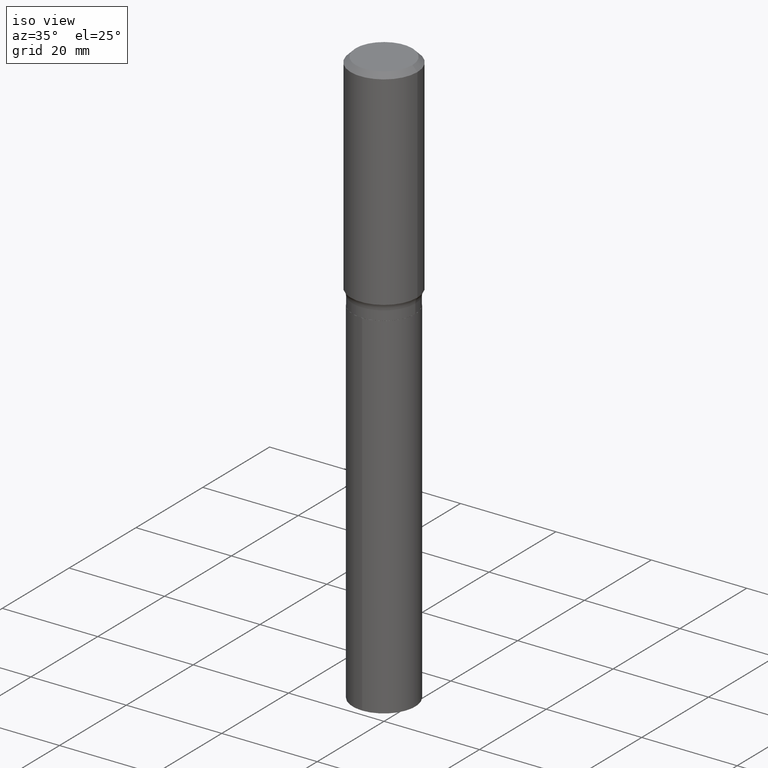
[diagram: clean part render]
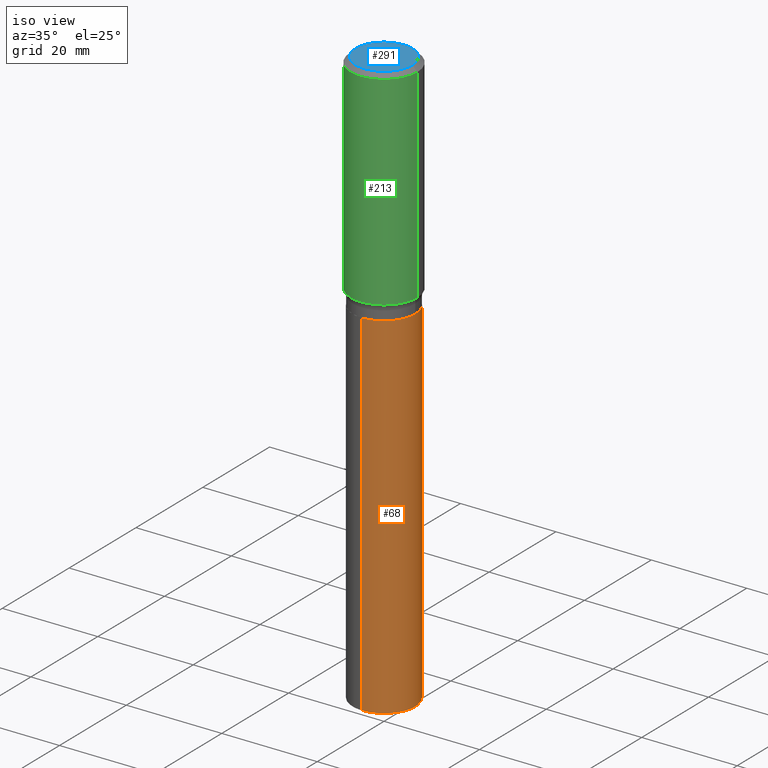
[diagram: same view with three faces highlighted in distinct colors, each labeled with its STEP entity id]
A machine part, iso view with three faces highlighted in distinct colors.
Their STEP definitions:

[orange] entity #68 — the highlighted cylindrical surface (partial cylindrical patch) has radius 6.5481 mm, axis along (-0, 0, 1).
#18 = EDGE_CURVE ( 'NONE', #303, #448, #95, .T. ) ;
#33 = CARTESIAN_POINT ( 'NONE',  ( -1.800207778307473807E-15, -0.2578000000000064129, -1.850499999999998924 ) ) ;
#62 = CARTESIAN_POINT ( 'NONE',  ( 1.831779172789583451E-15, 0.2577999999999935343, -1.850500000000000700 ) ) ;
#68 = ADVANCED_FACE ( 'NONE', ( #323 ), #475, .T. ) ;
#74 = EDGE_LOOP ( 'NONE', ( #409, #113, #177, #222 ) ) ;
#91 = DIRECTION ( 'NONE',  ( -2.445542093304783004E-29, 3.491376387516568254E-15, 1.000000000000000000 ) ) ;
#94 = CARTESIAN_POINT ( 'NONE',  ( 1.168427820367109338E-28, -1.668143909060755790E-14, -4.777842038979696504 ) ) ;
#95 = LINE ( 'NONE', #427, #364 ) ;
#97 = AXIS2_PLACEMENT_3D ( 'NONE', #314, #91, #386 ) ;
#113 = ORIENTED_EDGE ( 'NONE', *, *, #295, .T. ) ;
#116 = VERTEX_POINT ( 'NONE', #321 ) ;
#139 = CARTESIAN_POINT ( 'NONE',  ( 4.525340025845595057E-29, -6.460986217529240299E-15, -1.850499999999999812 ) ) ;
#163 = AXIS2_PLACEMENT_3D ( 'NONE', #94, #474, #358 ) ;
#168 = CIRCLE ( 'NONE', #163, 0.2577999999999999736 ) ;
#170 = CARTESIAN_POINT ( 'NONE',  ( -1.800207778307402810E-15, -0.2578000000000167380, -4.777842038979694728 ) ) ;
#177 = ORIENTED_EDGE ( 'NONE', *, *, #246, .F. ) ;
#202 = DIRECTION ( 'NONE',  ( -2.445542093304782724E-29, 3.491376387516568254E-15, 1.000000000000000000 ) ) ;
#205 = DIRECTION ( 'NONE',  ( -2.445542093304783004E-29, 3.491376387516568254E-15, 1.000000000000000000 ) ) ;
#222 = ORIENTED_EDGE ( 'NONE', *, *, #18, .F. ) ;
#239 = DIRECTION ( 'NONE',  ( -2.445542093304782724E-29, 3.491376387516568254E-15, 1.000000000000000000 ) ) ;
#246 = EDGE_CURVE ( 'NONE', #448, #116, #316, .T. ) ;
#260 = CARTESIAN_POINT ( 'NONE',  ( 1.831779172789655238E-15, 0.2577999999999833203, -4.777842038979697392 ) ) ;
#285 = LINE ( 'NONE', #62, #469 ) ;
#295 = EDGE_CURVE ( 'NONE', #343, #116, #285, .T. ) ;
#303 = VERTEX_POINT ( 'NONE', #170 ) ;
#314 = CARTESIAN_POINT ( 'NONE',  ( 4.525340025845595057E-29, -6.460986217529240299E-15, -1.850499999999999812 ) ) ;
#316 = CIRCLE ( 'NONE', #420, 0.2577999999999999736 ) ;
#321 = CARTESIAN_POINT ( 'NONE',  ( 1.831779172789655238E-15, 0.2577999999999934788, -1.850500000000000700 ) ) ;
#323 = FACE_OUTER_BOUND ( 'NONE', #74, .T. ) ;
#343 = VERTEX_POINT ( 'NONE', #260 ) ;
#358 = DIRECTION ( 'NONE',  ( -6.982962677686265922E-15, -1.000000000000000000, 4.238709066973255853E-15 ) ) ;
#364 = VECTOR ( 'NONE', #239, 39.37007874015748143 ) ;
#386 = DIRECTION ( 'NONE',  ( -6.982962677686265922E-15, -1.000000000000000000, 3.179031800229941890E-15 ) ) ;
#409 = ORIENTED_EDGE ( 'NONE', *, *, #437, .T. ) ;
#420 = AXIS2_PLACEMENT_3D ( 'NONE', #139, #205, #450 ) ;
#427 = CARTESIAN_POINT ( 'NONE',  ( -1.800207778307473807E-15, -0.2578000000000064129, -1.850499999999998924 ) ) ;
#437 = EDGE_CURVE ( 'NONE', #303, #343, #168, .T. ) ;
#448 = VERTEX_POINT ( 'NONE', #33 ) ;
#450 = DIRECTION ( 'NONE',  ( -6.982962677686265922E-15, -1.000000000000000000, 3.179031800229941890E-15 ) ) ;
#469 = VECTOR ( 'NONE', #202, 39.37007874015748143 ) ;
#474 = DIRECTION ( 'NONE',  ( -2.445542093304783004E-29, 3.491376387516568254E-15, 1.000000000000000000 ) ) ;
#475 = CYLINDRICAL_SURFACE ( 'NONE', #97, 0.2577999999999999736 ) ;

[blue] entity #291 — the highlighted planar face has unit normal (0, -0, -1).
#5 = DIRECTION ( 'NONE',  ( 1.000000000000000000, -6.982962677686267499E-15, 4.876157962347795834E-29 ) ) ;
#6 = EDGE_LOOP ( 'NONE', ( #457, #146 ) ) ;
#25 = FACE_OUTER_BOUND ( 'NONE', #6, .T. ) ;
#59 = DIRECTION ( 'NONE',  ( -2.445468806185136597E-29, 3.491481338843145583E-15, 1.000000000000000000 ) ) ;
#60 = AXIS2_PLACEMENT_3D ( 'NONE', #327, #280, #401 ) ;
#64 = CARTESIAN_POINT ( 'NONE',  ( -0.2342600000000000238, 1.707997756148671759E-15, 4.101342130332794026E-18 ) ) ;
#144 = DIRECTION ( 'NONE',  ( 1.000000000000000000, -6.982962677686267499E-15, 4.876157962347795834E-29 ) ) ;
#146 = ORIENTED_EDGE ( 'NONE', *, *, #477, .T. ) ;
#182 = CARTESIAN_POINT ( 'NONE',  ( -1.002970424325033577E-46, 1.431975951230896486E-32, 4.101342130344485961E-18 ) ) ;
#188 = AXIS2_PLACEMENT_3D ( 'NONE', #193, #59, #144 ) ;
#193 = CARTESIAN_POINT ( 'NONE',  ( -1.002970424325033577E-46, 1.431975951230896486E-32, 4.101342130344485961E-18 ) ) ;
#209 = VERTEX_POINT ( 'NONE', #484 ) ;
#257 = DIRECTION ( 'NONE',  ( -2.445468806185136597E-29, 3.491481338843145583E-15, 1.000000000000000000 ) ) ;
#280 = DIRECTION ( 'NONE',  ( 2.438088387897960049E-29, -3.491481338843145188E-15, -1.000000000000000000 ) ) ;
#288 = CIRCLE ( 'NONE', #317, 0.2342600000000000238 ) ;
#290 = VERTEX_POINT ( 'NONE', #64 ) ;
#291 = ADVANCED_FACE ( 'NONE', ( #25 ), #443, .F. ) ;
#307 = CIRCLE ( 'NONE', #188, 0.2342600000000000238 ) ;
#317 = AXIS2_PLACEMENT_3D ( 'NONE', #182, #257, #5 ) ;
#327 = CARTESIAN_POINT ( 'NONE',  ( -5.014852121625167883E-47, 7.159879756154482429E-33, 2.050671065172242981E-18 ) ) ;
#379 = EDGE_CURVE ( 'NONE', #290, #209, #307, .T. ) ;
#401 = DIRECTION ( 'NONE',  ( -1.000000000000000000, 6.982962677686265922E-15, -4.876176775795935793E-29 ) ) ;
#443 = PLANE ( 'NONE',  #60 ) ;
#457 = ORIENTED_EDGE ( 'NONE', *, *, #379, .T. ) ;
#477 = EDGE_CURVE ( 'NONE', #209, #290, #288, .T. ) ;
#484 = CARTESIAN_POINT ( 'NONE',  ( 0.2342600000000000238, -1.821115673845785155E-15, 4.101342130356573868E-18 ) ) ;

[green] entity #213 — the highlighted cylindrical surface (partial cylindrical patch) has radius 7.0002 mm, axis along (-0, 0, 1).
#12 = LINE ( 'NONE', #237, #440 ) ;
#30 = CARTESIAN_POINT ( 'NONE',  ( 0.000000000000000000, 0.000000000000000000, 0.000000000000000000 ) ) ;
#49 = CIRCLE ( 'NONE', #263, 0.2756000000000001782 ) ;
#63 = EDGE_CURVE ( 'NONE', #426, #189, #12, .T. ) ;
#73 = AXIS2_PLACEMENT_3D ( 'NONE', #374, #241, #287 ) ;
#102 = DIRECTION ( 'NONE',  ( -2.445468806185136597E-29, 3.491481338843145583E-15, 1.000000000000000000 ) ) ;
#108 = ORIENTED_EDGE ( 'NONE', *, *, #392, .T. ) ;
#173 = DIRECTION ( 'NONE',  ( 1.000000000000000000, -6.982962677686267499E-15, 4.876176775795935793E-29 ) ) ;
#174 = CIRCLE ( 'NONE', #73, 0.2756000000000000116 ) ;
#178 = ORIENTED_EDGE ( 'NONE', *, *, #63, .T. ) ;
#180 = AXIS2_PLACEMENT_3D ( 'NONE', #30, #102, #173 ) ;
#184 = EDGE_CURVE ( 'NONE', #492, #189, #174, .T. ) ;
#189 = VERTEX_POINT ( 'NONE', #247 ) ;
#207 = CARTESIAN_POINT ( 'NONE',  ( -0.2756000000000001227, 1.958255779754836984E-15, -1.355658510874252567E-29 ) ) ;
#212 = ORIENTED_EDGE ( 'NONE', *, *, #184, .F. ) ;
#213 = ADVANCED_FACE ( 'NONE', ( #370 ), #338, .T. ) ;
#223 = CARTESIAN_POINT ( 'NONE',  ( -0.2756000000000000116, -1.122002406709343696E-15, -0.04134000000000026542 ) ) ;
#228 = DIRECTION ( 'NONE',  ( -2.445468806185136877E-29, 3.491481338843145188E-15, 1.000000000000000000 ) ) ;
#236 = DIRECTION ( 'NONE',  ( -2.445468806185136877E-29, 3.491481338843145188E-15, 1.000000000000000000 ) ) ;
#237 = CARTESIAN_POINT ( 'NONE',  ( 0.2756000000000001227, -1.924504513970336137E-15, 1.343874319409360548E-29 ) ) ;
#241 = DIRECTION ( 'NONE',  ( -2.445468806185136597E-29, 3.491481338843145583E-15, 1.000000000000000000 ) ) ;
#247 = CARTESIAN_POINT ( 'NONE',  ( 0.2756000000000000116, -2.068842352518111732E-15, -0.04134000000000026542 ) ) ;
#263 = AXIS2_PLACEMENT_3D ( 'NONE', #442, #449, #431 ) ;
#287 = DIRECTION ( 'NONE',  ( 1.000000000000000000, -6.982962677686267499E-15, 0.000000000000000000 ) ) ;
#322 = LINE ( 'NONE', #207, #481 ) ;
#331 = ORIENTED_EDGE ( 'NONE', *, *, #384, .F. ) ;
#338 = CYLINDRICAL_SURFACE ( 'NONE', #180, 0.2756000000000001227 ) ;
#339 = VERTEX_POINT ( 'NONE', #380 ) ;
#370 = FACE_OUTER_BOUND ( 'NONE', #385, .T. ) ;
#372 = CARTESIAN_POINT ( 'NONE',  ( 0.2756000000000002337, -7.940683048350921508E-15, -1.723102016170008355 ) ) ;
#374 = CARTESIAN_POINT ( 'NONE',  ( 1.010956804476942048E-30, -1.443378385477765563E-16, -0.04134000000000026542 ) ) ;
#380 = CARTESIAN_POINT ( 'NONE',  ( -0.2756000000000002337, -4.057922754625746809E-15, -1.723102016170008355 ) ) ;
#384 = EDGE_CURVE ( 'NONE', #339, #492, #322, .T. ) ;
#385 = EDGE_LOOP ( 'NONE', ( #331, #108, #178, #212 ) ) ;
#392 = EDGE_CURVE ( 'NONE', #339, #426, #49, .T. ) ;
#426 = VERTEX_POINT ( 'NONE', #372 ) ;
#431 = DIRECTION ( 'NONE',  ( 1.000000000000000000, -6.982962677686265922E-15, 0.000000000000000000 ) ) ;
#440 = VECTOR ( 'NONE', #228, 39.37007874015748143 ) ;
#442 = CARTESIAN_POINT ( 'NONE',  ( 4.213792230418472128E-29, -6.016178534380584976E-15, -1.723102016170008355 ) ) ;
#449 = DIRECTION ( 'NONE',  ( -2.445468806185136597E-29, 3.491481338843145583E-15, 1.000000000000000000 ) ) ;
#481 = VECTOR ( 'NONE', #236, 39.37007874015748143 ) ;
#492 = VERTEX_POINT ( 'NONE', #223 ) ;